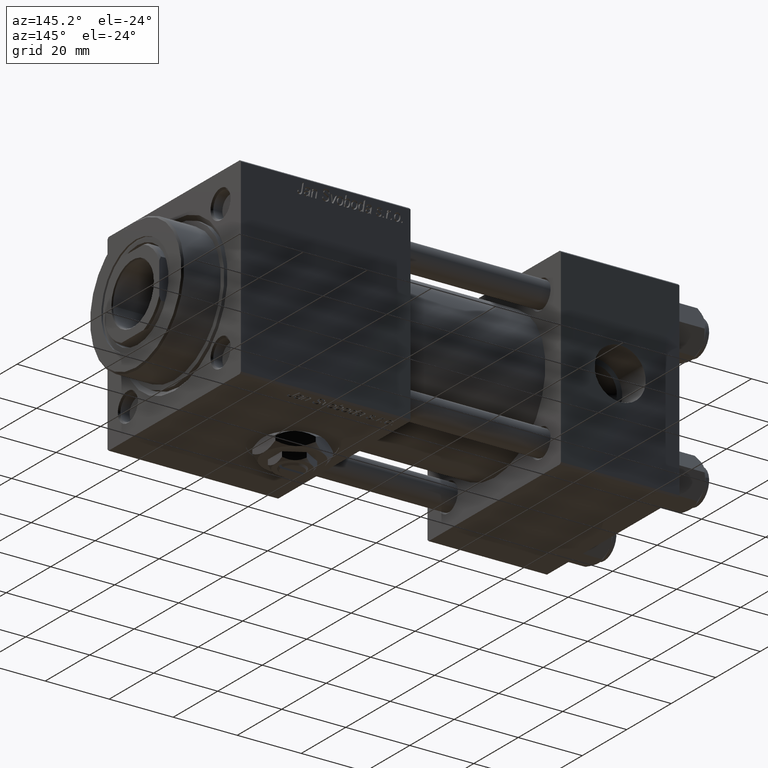
[diagram: clean part render]
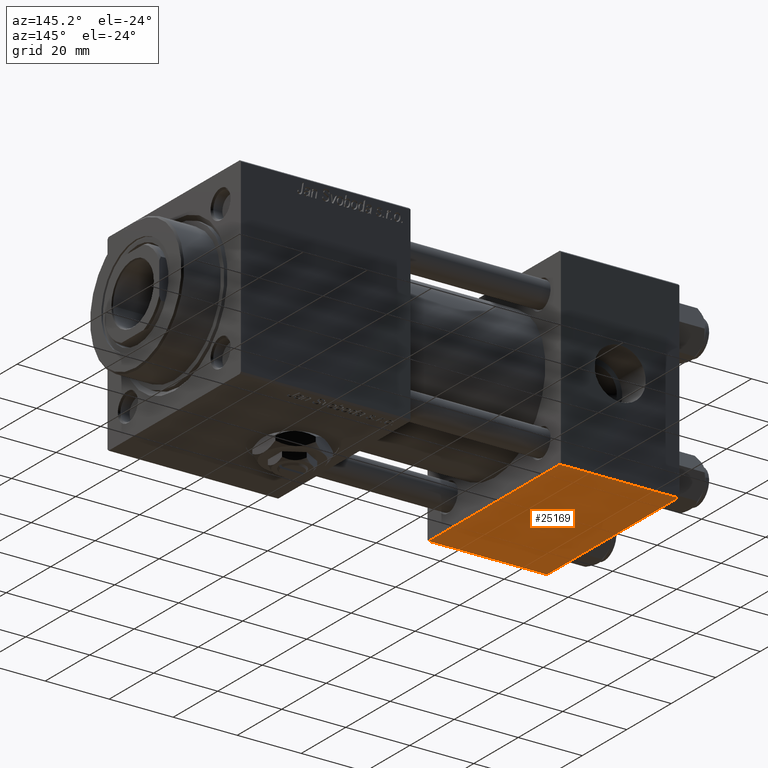
[diagram: same view with one face highlighted and labeled with its STEP entity id]
A machine part, auxiliary view. The second image highlights one B-rep face of the part: STEP entity #25169.
In plain terms, the highlighted planar face has unit normal (0, 0, -1).
Its self-contained STEP definition (entity closure, byte-faithful):
#24 = CARTESIAN_POINT ( 'NONE',  ( 37.00000000000000000, 29.99999999999999289, -30.00000000000000000 ) ) ;
#685 = DIRECTION ( 'NONE',  ( 0.000000000000000000, 1.000000000000000000, 1.156482317317871725E-16 ) ) ;
#925 = AXIS2_PLACEMENT_3D ( 'NONE', #1799, #6555, #685 ) ;
#1799 = CARTESIAN_POINT ( 'NONE',  ( 37.00000000000000000, 29.99999999999999289, -30.00000000000000000 ) ) ;
#2270 = EDGE_CURVE ( 'NONE', #56248, #48329, #50315, .T. ) ;
#2669 = CARTESIAN_POINT ( 'NONE',  ( 0.000000000000000000, 29.99999999999999289, -30.00000000000000000 ) ) ;
#3011 = ORIENTED_EDGE ( 'NONE', *, *, #24487, .F. ) ;
#5178 = CARTESIAN_POINT ( 'NONE',  ( 37.00000000000000000, 29.49999999999997868, -30.00000000000000000 ) ) ;
#6555 = DIRECTION ( 'NONE',  ( 0.000000000000000000, 1.156482317317871725E-16, -1.000000000000000000 ) ) ;
#9409 = CARTESIAN_POINT ( 'NONE',  ( 37.00000000000000000, 29.49999999999997868, -30.00000000000000000 ) ) ;
#9668 = VECTOR ( 'NONE', #14141, 1000.000000000000000 ) ;
#11714 = ORIENTED_EDGE ( 'NONE', *, *, #46585, .T. ) ;
#11902 = LINE ( 'NONE', #2669, #36186 ) ;
#12879 = VECTOR ( 'NONE', #17980, 1000.000000000000000 ) ;
#14141 = DIRECTION ( 'NONE',  ( -1.000000000000000000, 0.000000000000000000, 0.000000000000000000 ) ) ;
#17373 = ORIENTED_EDGE ( 'NONE', *, *, #2270, .T. ) ;
#17980 = DIRECTION ( 'NONE',  ( 1.000000000000000000, 0.000000000000000000, 0.000000000000000000 ) ) ;
#18576 = LINE ( 'NONE', #5178, #12879 ) ;
#21136 = VERTEX_POINT ( 'NONE', #30076 ) ;
#21936 = VERTEX_POINT ( 'NONE', #46761 ) ;
#24487 = EDGE_CURVE ( 'NONE', #21136, #21936, #11902, .T. ) ;
#24814 = VECTOR ( 'NONE', #32753, 1000.000000000000000 ) ;
#25169 = ADVANCED_FACE ( 'NONE', ( #51813 ), #47320, .T. ) ;
#27516 = CARTESIAN_POINT ( 'NONE',  ( 0.000000000000000000, -29.50000000000001066, -30.00000000000000711 ) ) ;
#30076 = CARTESIAN_POINT ( 'NONE',  ( 0.000000000000000000, 29.49999999999997868, -30.00000000000000000 ) ) ;
#30321 = DIRECTION ( 'NONE',  ( 0.000000000000000000, -1.000000000000000000, -1.156482317317871725E-16 ) ) ;
#32590 = LINE ( 'NONE', #27516, #9668 ) ;
#32753 = DIRECTION ( 'NONE',  ( 0.000000000000000000, -1.000000000000000000, -1.156482317317871725E-16 ) ) ;
#36186 = VECTOR ( 'NONE', #30321, 1000.000000000000000 ) ;
#44165 = ORIENTED_EDGE ( 'NONE', *, *, #54672, .T. ) ;
#44945 = EDGE_LOOP ( 'NONE', ( #3011, #11714, #17373, #44165 ) ) ;
#46585 = EDGE_CURVE ( 'NONE', #21136, #56248, #18576, .T. ) ;
#46761 = CARTESIAN_POINT ( 'NONE',  ( 0.000000000000000000, -29.50000000000000000, -30.00000000000000711 ) ) ;
#47320 = PLANE ( 'NONE',  #925 ) ;
#48329 = VERTEX_POINT ( 'NONE', #51924 ) ;
#50315 = LINE ( 'NONE', #24, #24814 ) ;
#51813 = FACE_OUTER_BOUND ( 'NONE', #44945, .T. ) ;
#51924 = CARTESIAN_POINT ( 'NONE',  ( 37.00000000000000000, -29.50000000000000000, -30.00000000000000711 ) ) ;
#54672 = EDGE_CURVE ( 'NONE', #48329, #21936, #32590, .T. ) ;
#56248 = VERTEX_POINT ( 'NONE', #9409 ) ;